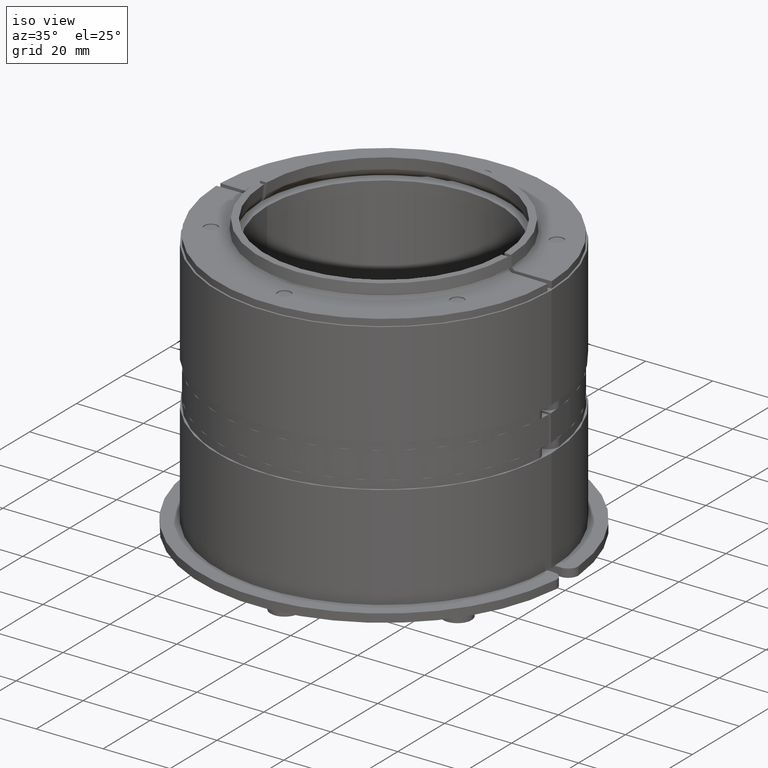
[diagram: clean part render]
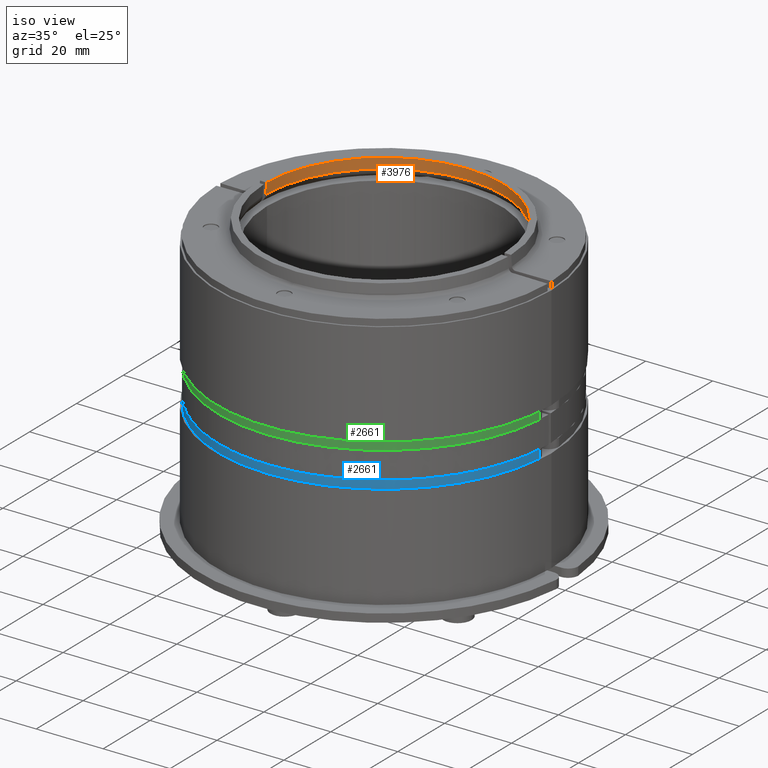
[diagram: same view with three faces highlighted in distinct colors, each labeled with its STEP entity id]
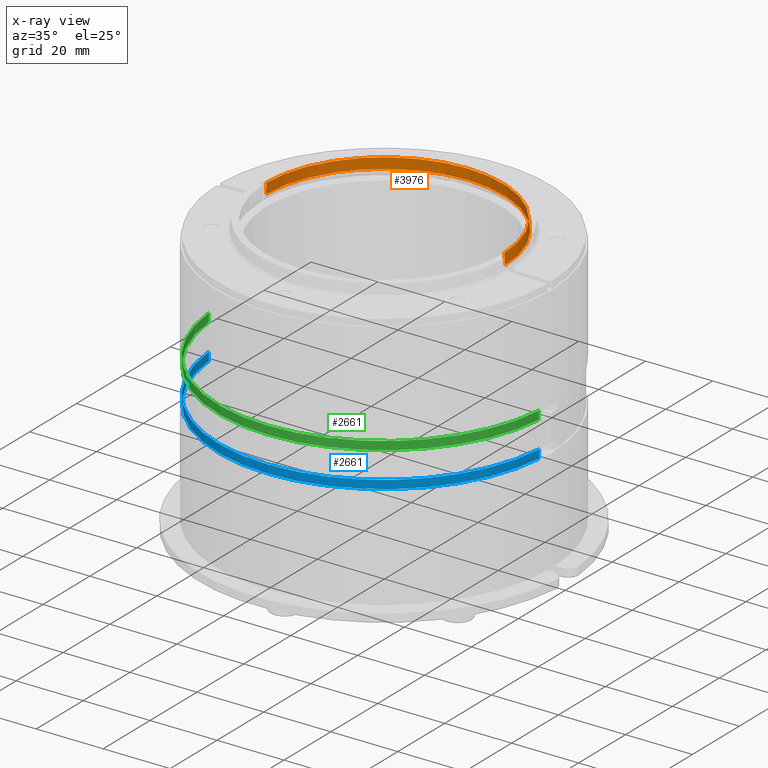
[diagram: x-ray of the same camera — body ghosted, the three highlighted faces saturated]
A machine part, iso view with three faces highlighted in distinct colors.
The next image is the same camera in x-ray (body ghosted, the three faces saturated) — at least one of them is partly hidden behind the body in this view.
Their STEP definitions:

[orange] entity #3976 — the highlighted conical surface has half-angle 5 deg.
#3364=CARTESIAN_POINT('',(-4.351180E-015,0.261467228242959,35.785341408932709));
#3365=VERTEX_POINT('',#3364);
#3382=CARTESIAN_POINT('',(35.763541945833957,0.261467228242955,1.248890404498924));
#3383=VERTEX_POINT('',#3382);
#3391=CARTESIAN_POINT('',(1.972718E-016,0.261467228242959,0.0));
#3392=DIRECTION('',(0.0,1.0,0.0));
#3393=DIRECTION('',(-1.0,0.0,0.0));
#3394=AXIS2_PLACEMENT_3D('',#3391,#3392,#3393);
#3395=CIRCLE('',#3394,35.785341408932709);
#3396=EDGE_CURVE('',#3365,#3383,#3395,.T.);
#3696=CARTESIAN_POINT('',(35.478374359177892,-3.000000000000009,1.238932132938790));
#3697=VERTEX_POINT('',#3696);
#3715=CARTESIAN_POINT('',(-35.500000000000000,-3.0,0.0));
#3716=VERTEX_POINT('',#3715);
#3723=CARTESIAN_POINT('',(-2.021295E-016,-3.000000000000004,0.0));
#3724=DIRECTION('',(0.0,1.0,0.0));
#3725=DIRECTION('',(-1.0,0.0,0.0));
#3726=AXIS2_PLACEMENT_3D('',#3723,#3724,#3725);
#3727=CIRCLE('',#3726,35.500000000000000);
#3728=EDGE_CURVE('',#3716,#3697,#3727,.T.);
#3934=CARTESIAN_POINT('',(-35.785341408932709,0.261467228242964,0.0));
#3935=VERTEX_POINT('',#3934);
#3936=CARTESIAN_POINT('',(1.972718E-016,0.261467228242959,0.0));
#3937=DIRECTION('',(0.0,1.0,0.0));
#3938=DIRECTION('',(-1.0,0.0,0.0));
#3939=AXIS2_PLACEMENT_3D('',#3936,#3937,#3938);
#3940=CIRCLE('',#3939,35.785341408932709);
#3941=EDGE_CURVE('',#3935,#3365,#3940,.T.);
#3954=CARTESIAN_POINT('',(-2.428846E-018,-1.369266385878523,0.0));
#3955=DIRECTION('',(1.224606E-016,1.0,0.0));
#3956=DIRECTION('',(-1.0,0.0,0.0));
#3957=AXIS2_PLACEMENT_3D('',#3954,#3955,#3956);
#3958=CONICAL_SURFACE('',#3957,35.642670704466354,4.999999999999986);
#3959=CARTESIAN_POINT('',(35.763541945833957,0.261467228242955,1.248890404498924));
#3960=DIRECTION('',(-0.087102649824089,-0.996194698091742,-0.003041691556627));
#3961=VECTOR('',#3960,3.273925503207816);
#3962=LINE('',#3959,#3961);
#3963=EDGE_CURVE('',#3383,#3697,#3962,.T.);
#3964=ORIENTED_EDGE('',*,*,#3963,.T.);
#3965=ORIENTED_EDGE('',*,*,#3728,.F.);
#3966=CARTESIAN_POINT('',(-35.500000000000000,-3.0,0.0));
#3967=DIRECTION('',(-0.087155742747698,0.996194698091742,0.0));
#3968=VECTOR('',#3967,3.273925503207815);
#3969=LINE('',#3966,#3968);
#3970=EDGE_CURVE('',#3716,#3935,#3969,.T.);
#3971=ORIENTED_EDGE('',*,*,#3970,.T.);
#3972=ORIENTED_EDGE('',*,*,#3941,.T.);
#3973=ORIENTED_EDGE('',*,*,#3396,.T.);
#3974=EDGE_LOOP('',(#3964,#3965,#3971,#3972,#3973));
#3975=FACE_OUTER_BOUND('',#3974,.T.);
#3976=ADVANCED_FACE('',(#3975),#3958,.F.);

[blue] entity #2661 — the highlighted cylindrical surface (partial cylindrical patch) has radius 49.5 mm, axis along (-0, 0, 1).
#2181=CARTESIAN_POINT('',(49.806001689521828,-21.491935483871323,-1.250000000000000));
#2182=VERTEX_POINT('',#2181);
#2190=CARTESIAN_POINT('',(49.806001689521828,-21.491935483871323,1.250000000000000));
#2191=VERTEX_POINT('',#2190);
#2192=CARTESIAN_POINT('',(49.806001689521828,-21.491935483871323,-1.250000000000000));
#2193=DIRECTION('',(0.0,0.0,1.0));
#2194=VECTOR('',#2193,2.500000000000000);
#2195=LINE('',#2192,#2194);
#2196=EDGE_CURVE('',#2182,#2191,#2195,.T.);
#2340=CARTESIAN_POINT('',(-48.827033072194446,-21.491935483871309,1.250000000000000));
#2341=VERTEX_POINT('',#2340);
#2349=CARTESIAN_POINT('',(-48.827033072194446,-21.491935483871309,-1.250000000000000));
#2350=VERTEX_POINT('',#2349);
#2351=CARTESIAN_POINT('',(-48.827033072194446,-21.491935483871309,1.250000000000000));
#2352=DIRECTION('',(0.0,0.0,-1.0));
#2353=VECTOR('',#2352,2.500000000000000);
#2354=LINE('',#2351,#2353);
#2355=EDGE_CURVE('',#2341,#2350,#2354,.T.);
#2404=CARTESIAN_POINT('',(0.489484308663691,-25.750000000000327,-1.250000000000000));
#2405=DIRECTION('',(0.0,0.0,-1.0));
#2406=DIRECTION('',(-1.0,0.0,0.0));
#2407=AXIS2_PLACEMENT_3D('',#2404,#2405,#2406);
#2408=CIRCLE('',#2407,49.500000000000000);
#2409=EDGE_CURVE('',#2350,#2182,#2408,.T.);
#2644=CARTESIAN_POINT('',(0.489484308663691,-25.750000000000327,-1.250000000000000));
#2645=DIRECTION('',(0.0,0.0,1.0));
#2646=DIRECTION('',(-1.0,0.0,0.0));
#2647=AXIS2_PLACEMENT_3D('',#2644,#2645,#2646);
#2648=CYLINDRICAL_SURFACE('',#2647,49.500000000000000);
#2649=ORIENTED_EDGE('',*,*,#2355,.F.);
#2650=CARTESIAN_POINT('',(0.489484308663691,-25.750000000000327,1.250000000000000));
#2651=DIRECTION('',(0.0,0.0,-1.0));
#2652=DIRECTION('',(-1.0,0.0,0.0));
#2653=AXIS2_PLACEMENT_3D('',#2650,#2651,#2652);
#2654=CIRCLE('',#2653,49.500000000000000);
#2655=EDGE_CURVE('',#2341,#2191,#2654,.T.);
#2656=ORIENTED_EDGE('',*,*,#2655,.T.);
#2657=ORIENTED_EDGE('',*,*,#2196,.F.);
#2658=ORIENTED_EDGE('',*,*,#2409,.F.);
#2659=EDGE_LOOP('',(#2649,#2656,#2657,#2658));
#2660=FACE_OUTER_BOUND('',#2659,.T.);
#2661=ADVANCED_FACE('',(#2660),#2648,.T.);

[green] entity #2661 — the highlighted cylindrical surface (partial cylindrical patch) has radius 49.5 mm, axis along (-0, 0, 1).
#2181=CARTESIAN_POINT('',(49.806001689521828,-21.491935483871323,-1.250000000000000));
#2182=VERTEX_POINT('',#2181);
#2190=CARTESIAN_POINT('',(49.806001689521828,-21.491935483871323,1.250000000000000));
#2191=VERTEX_POINT('',#2190);
#2192=CARTESIAN_POINT('',(49.806001689521828,-21.491935483871323,-1.250000000000000));
#2193=DIRECTION('',(0.0,0.0,1.0));
#2194=VECTOR('',#2193,2.500000000000000);
#2195=LINE('',#2192,#2194);
#2196=EDGE_CURVE('',#2182,#2191,#2195,.T.);
#2340=CARTESIAN_POINT('',(-48.827033072194446,-21.491935483871309,1.250000000000000));
#2341=VERTEX_POINT('',#2340);
#2349=CARTESIAN_POINT('',(-48.827033072194446,-21.491935483871309,-1.250000000000000));
#2350=VERTEX_POINT('',#2349);
#2351=CARTESIAN_POINT('',(-48.827033072194446,-21.491935483871309,1.250000000000000));
#2352=DIRECTION('',(0.0,0.0,-1.0));
#2353=VECTOR('',#2352,2.500000000000000);
#2354=LINE('',#2351,#2353);
#2355=EDGE_CURVE('',#2341,#2350,#2354,.T.);
#2404=CARTESIAN_POINT('',(0.489484308663691,-25.750000000000327,-1.250000000000000));
#2405=DIRECTION('',(0.0,0.0,-1.0));
#2406=DIRECTION('',(-1.0,0.0,0.0));
#2407=AXIS2_PLACEMENT_3D('',#2404,#2405,#2406);
#2408=CIRCLE('',#2407,49.500000000000000);
#2409=EDGE_CURVE('',#2350,#2182,#2408,.T.);
#2644=CARTESIAN_POINT('',(0.489484308663691,-25.750000000000327,-1.250000000000000));
#2645=DIRECTION('',(0.0,0.0,1.0));
#2646=DIRECTION('',(-1.0,0.0,0.0));
#2647=AXIS2_PLACEMENT_3D('',#2644,#2645,#2646);
#2648=CYLINDRICAL_SURFACE('',#2647,49.500000000000000);
#2649=ORIENTED_EDGE('',*,*,#2355,.F.);
#2650=CARTESIAN_POINT('',(0.489484308663691,-25.750000000000327,1.250000000000000));
#2651=DIRECTION('',(0.0,0.0,-1.0));
#2652=DIRECTION('',(-1.0,0.0,0.0));
#2653=AXIS2_PLACEMENT_3D('',#2650,#2651,#2652);
#2654=CIRCLE('',#2653,49.500000000000000);
#2655=EDGE_CURVE('',#2341,#2191,#2654,.T.);
#2656=ORIENTED_EDGE('',*,*,#2655,.T.);
#2657=ORIENTED_EDGE('',*,*,#2196,.F.);
#2658=ORIENTED_EDGE('',*,*,#2409,.F.);
#2659=EDGE_LOOP('',(#2649,#2656,#2657,#2658));
#2660=FACE_OUTER_BOUND('',#2659,.T.);
#2661=ADVANCED_FACE('',(#2660),#2648,.T.);